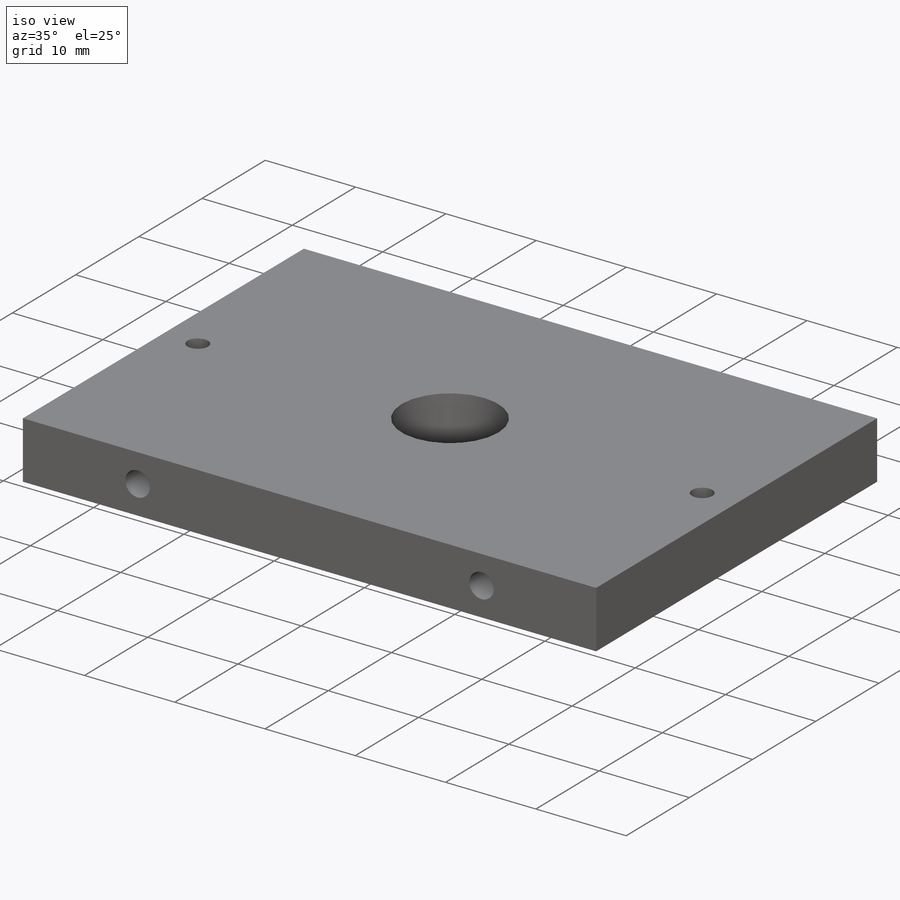
[diagram: iso view]
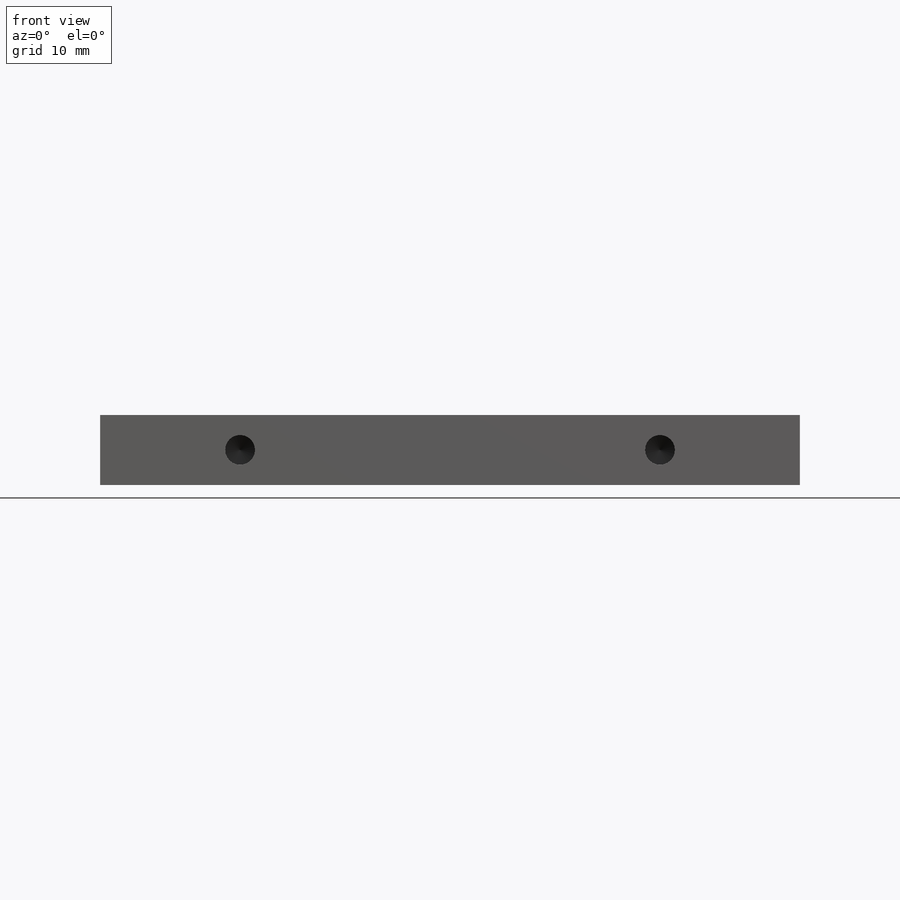
[diagram: front view]
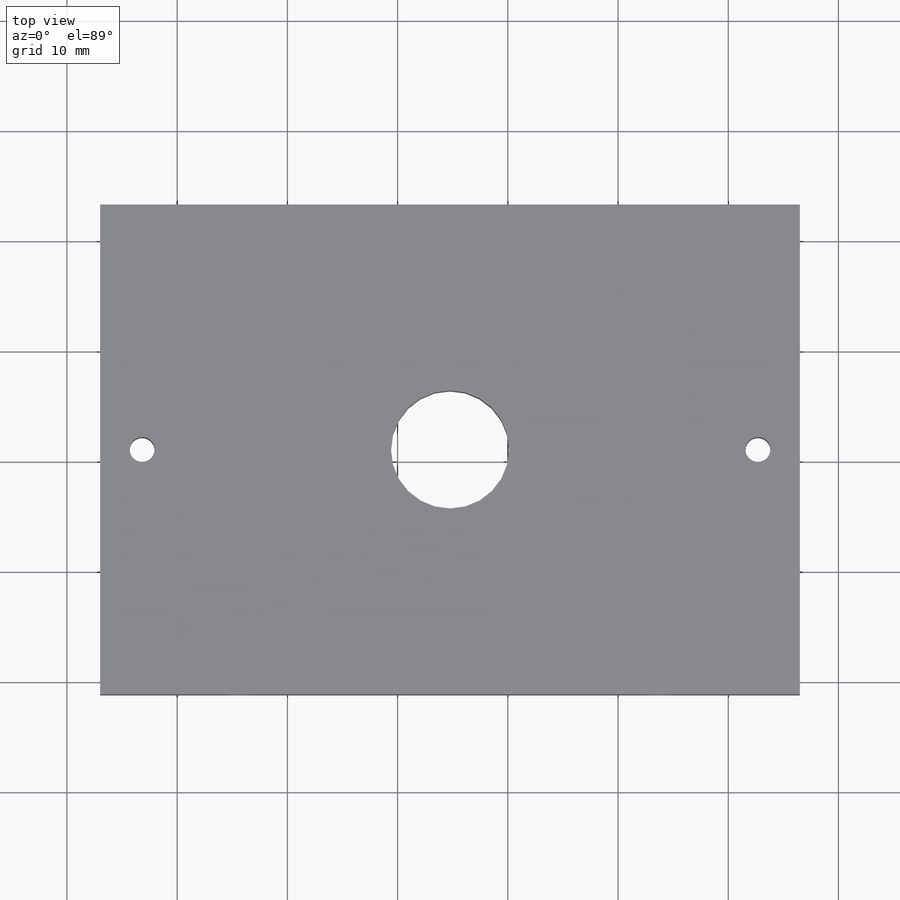
[diagram: top view]
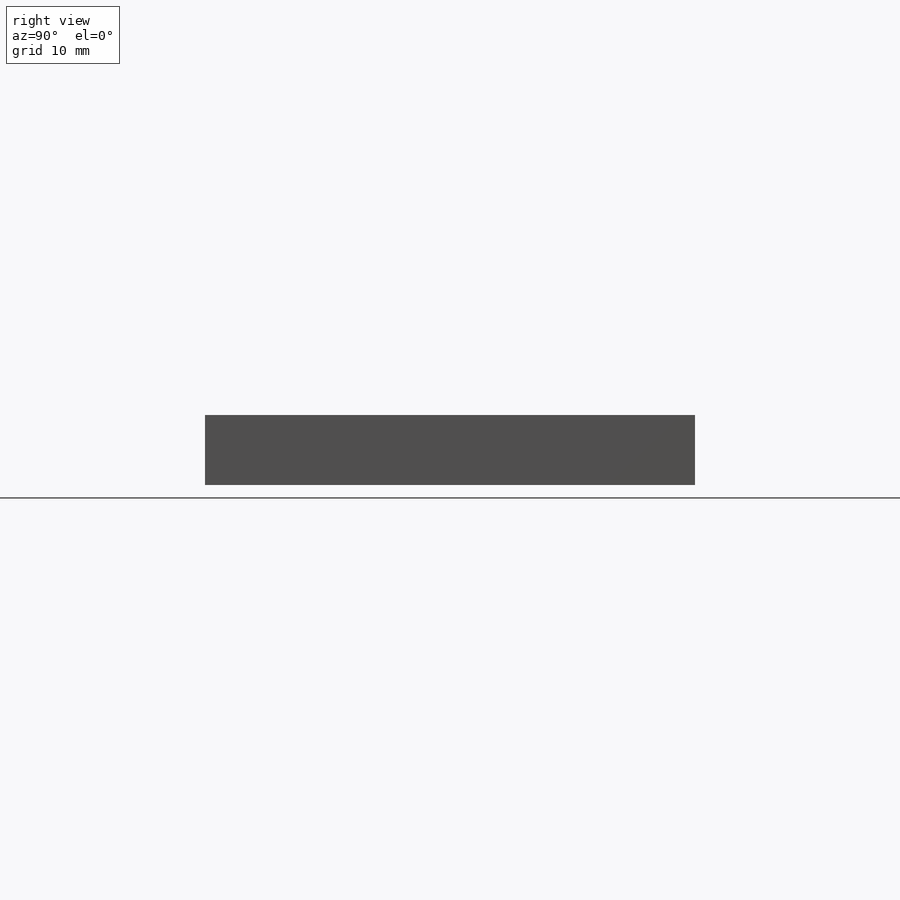
[diagram: right view]
SOLIDWORKS PART (.sldprt)
format: sldprt  version: not decoded by parser v0  size: 296,448 bytes
history: native  units: mm
features: sketch x11, hole x5, material x1, extrude x1, pattern_linear x1 + 1 further entry (+15 scaffold rows collapsed)
feature tree (35):
  scaffold x15  (default folders/planes/origin — collapsed)
  material  "Material <not specified>"
  "Annotations"  RD1=6.35mm RD2=55.88mm
  sketch  "Sketch1"  dims[D1=44.45mm D2=63.5mm]
  extrude  "Boss-Extrude1"  Depth=6.35mm
  hole  "Ø3.0 (3) Diameter Hole5"  Diameter=3mm Depth=12.7mm
  sketch  "Sketch15"  dims[D1=38.1mm D2=3.175mm D3=3.175mm D4=3.175mm]
  sketch  "Sketch14"  dims[hole-wizard template sketch: 47 standard entries collapsed; hole parameters kept: c15.Hole Depth=12.7mm c15.D3=~14.816244mm c15.Drill Angle=118.0deg]
  hole  "Tap Drill for #4-40 Tap1"  Diameter=2.2606mm Depth=12.7mm
  sketch  "Sketch17"  dims[D1=22.225mm D2=3.81mm]
  sketch  "Sketch16"  dims[hole-wizard template sketch: 47 standard entries collapsed; hole parameters kept: c15.Hole Depth=12.7mm c15.D3=~14.816244mm c15.Drill Angle=118.0deg]
  pattern_linear  "LPattern1"  Count1=2 Count2=1 Spacing1=55.88mm Spacing2=27.94mm
  hole  "Tap Drill for #6-32 Tap1"  Diameter=2.7051mm Depth=6.35mm
  sketch  "Sketch23"  dims[D1=38.1mm D2=12.7mm D3=3.175mm]
  sketch  "Sketch22"  dims[hole-wizard template sketch: 47 standard entries collapsed; hole parameters kept: c15.Hole Depth=6.35mm c15.D3=~14.816244mm c15.Drill Angle=118.0deg]
  hole  "Tap Drill for #6-32 Tap2"  Diameter=2.7051mm Depth=6.35mm
  sketch  "Sketch25"  dims[D1=38.1mm D2=3.175mm D3=12.7mm]
  sketch  "Sketch24"  dims[hole-wizard template sketch: 47 standard entries collapsed; hole parameters kept: c15.Hole Depth=6.35mm c15.D3=~14.816244mm c15.Drill Angle=118.0deg]
  hole  "Tap Drill for 1/2-13 Tap1"  Diameter=10.71626mm Depth=6.35mm
  sketch  "Sketch27"  dims[D1=31.75mm D2=22.225mm]
  sketch  "Sketch26"  dims[hole-wizard template sketch: 46 standard entries collapsed; hole parameters kept: c15.Hole Dia.=~10.71626mm c15.Hole Depth=6.35mm c15.D3=~14.816244mm c15.Drill Angle=118.0deg]
decode coverage: 18 of 18 modeling features carry decoded parameters; 1 rows unclassified (native names shown)
note: ~ marks probable driven/reference dimensions
summary: Diameter pulled from absorbed wizard sketch
note: suppression state not decoded; provenance and decode notes live in map.json
